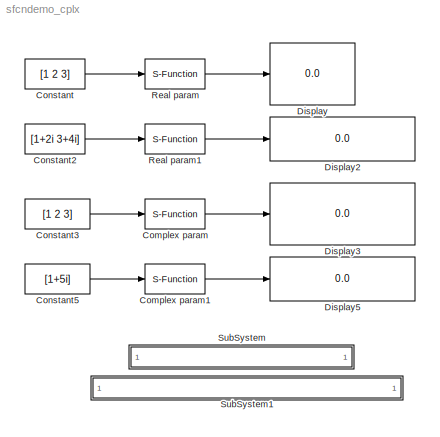
MODEL sfcndemo_cplx
KIND model
BLOCK [S-Function] Complex param
  AttributesFormatString = Param = %<Parameters>
  FunctionName = sfun_cplx
  Parameters = [2+3i 4+5i 6+7i]
  Ports = [1, 1]
BLOCK [S-Function] Complex param1
  AttributesFormatString = Param = %<Parameters>
  FunctionName = sfun_cplx
  Parameters = [1+3i 7+2i]
  Ports = [1, 1]
BLOCK [Constant] Constant
  Value = [1 2 3]
  VectorParams1D = off
BLOCK [Constant] Constant2
  Value = [1+2i 3+4i]
  VectorParams1D = off
BLOCK [Constant] Constant3
  Value = [1  2 3]
  VectorParams1D = off
BLOCK [Constant] Constant5
  Value = [1+5i]
  VectorParams1D = off
BLOCK [Display] Display
  Decimation = 1
  Ports = [1]
BLOCK [Display] Display2
  Decimation = 1
  Ports = [1]
BLOCK [Display] Display3
  Decimation = 1
  Ports = [1]
BLOCK [Display] Display5
  Decimation = 1
  Ports = [1]
BLOCK [S-Function] Real  param
  AttributesFormatString = Param = %<Parameters>
  FunctionName = sfun_cplx
  Parameters = 5
  Ports = [1, 1]
BLOCK [S-Function] Real param1
  AttributesFormatString = Param = %<Parameters>
  FunctionName = sfun_cplx
  Parameters = [5 6]
  Ports = [1, 1]
BLOCK [SubSystem] SubSystem
  MaskDisplay = disp('matlabroot<path>');
  MaskIconFrame = on
  MaskIconOpaque = on
  MaskIconRotate = none
  MaskIconUnits = autoscale
  MinAlgLoopOccurrences = off
  OpenFcn = edit(fullfile(matlabroot,'simulink','src','sfun_cplx.c'))
  Ports = []
  PropExecContextAcrossSSBoundary = on
  RTWSystemCode = Auto
  TreatAsAtomicUnit = off
BLOCK [SubSystem] SubSystem1
  MaskDisplay = disp('matlabroot<path>');
  MaskIconFrame = on
  MaskIconOpaque = on
  MaskIconRotate = none
  MaskIconUnits = autoscale
  MinAlgLoopOccurrences = off
  OpenFcn = edit(fullfile(matlabroot,'toolbox','simulink','blocks','tlc_c','sfun_cplx.tlc'))
  Ports = []
  PropExecContextAcrossSSBoundary = on
  RTWSystemCode = Auto
  TreatAsAtomicUnit = off
LINE Complex param1:1 -> Display5:1
LINE Complex param:1 -> Display3:1
LINE Constant2:1 -> Real param1:1
LINE Constant3:1 -> Complex param:1
LINE Constant5:1 -> Complex param1:1
LINE Constant:1 -> Real  param:1
LINE Real  param:1 -> Display:1
LINE Real param1:1 -> Display2:1
note: 2 file-system paths scrubbed to <path> (not preserved elsewhere — flat text is the only slx artifact)
